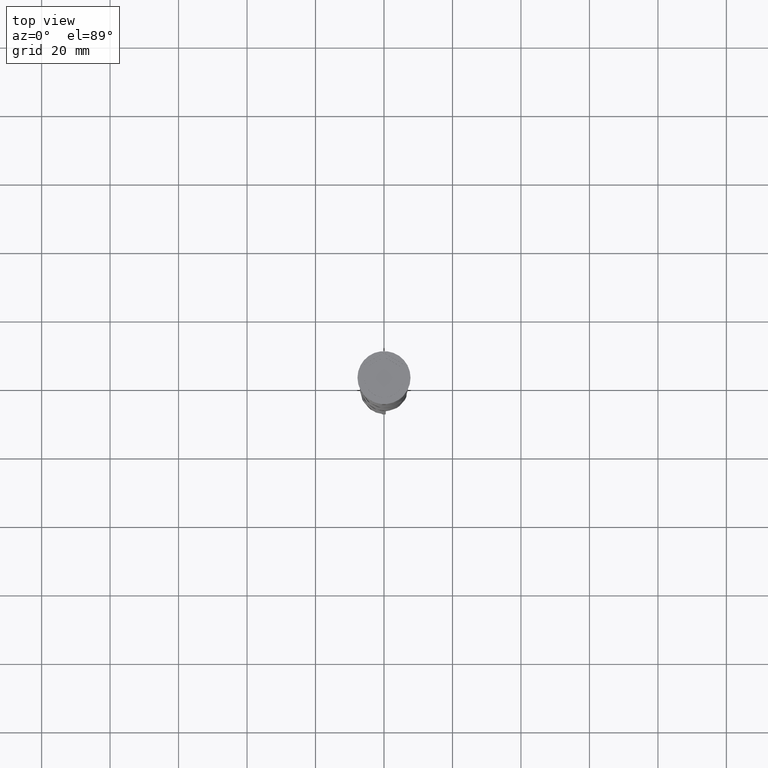
[diagram: clean part render]
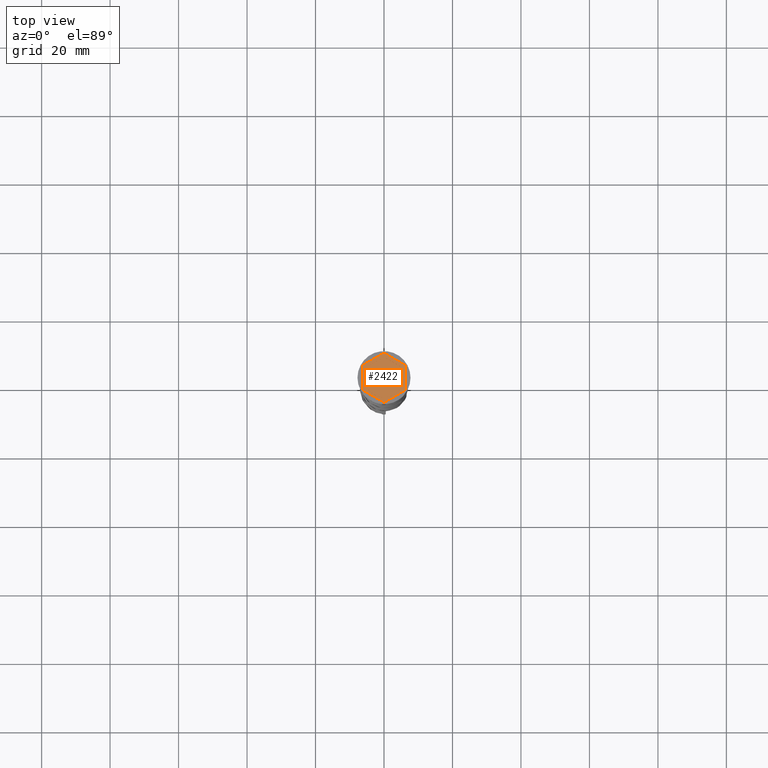
[diagram: same view with one face highlighted and labeled with its STEP entity id]
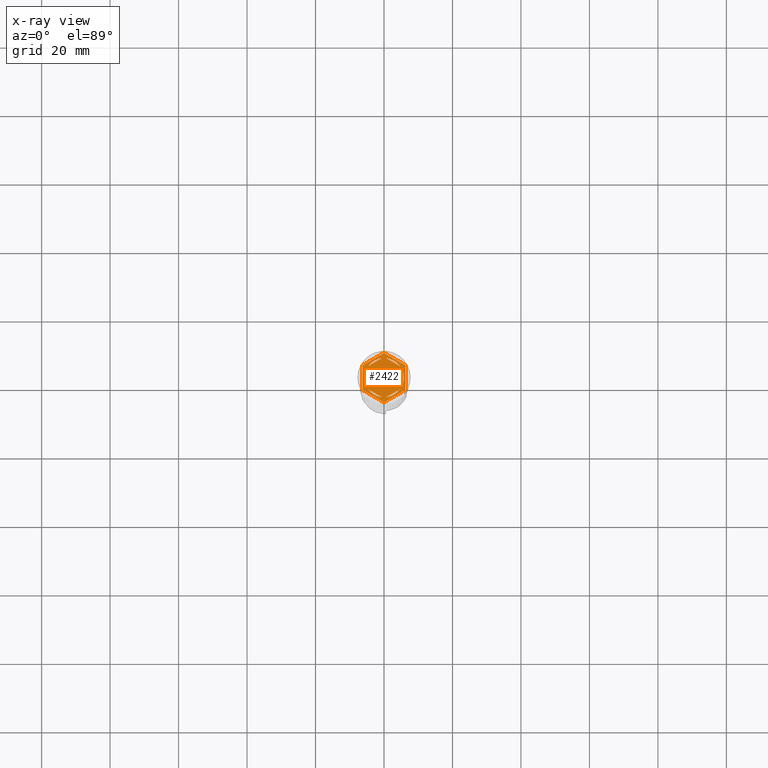
[diagram: x-ray of the same camera — body ghosted, the highlighted face saturated]
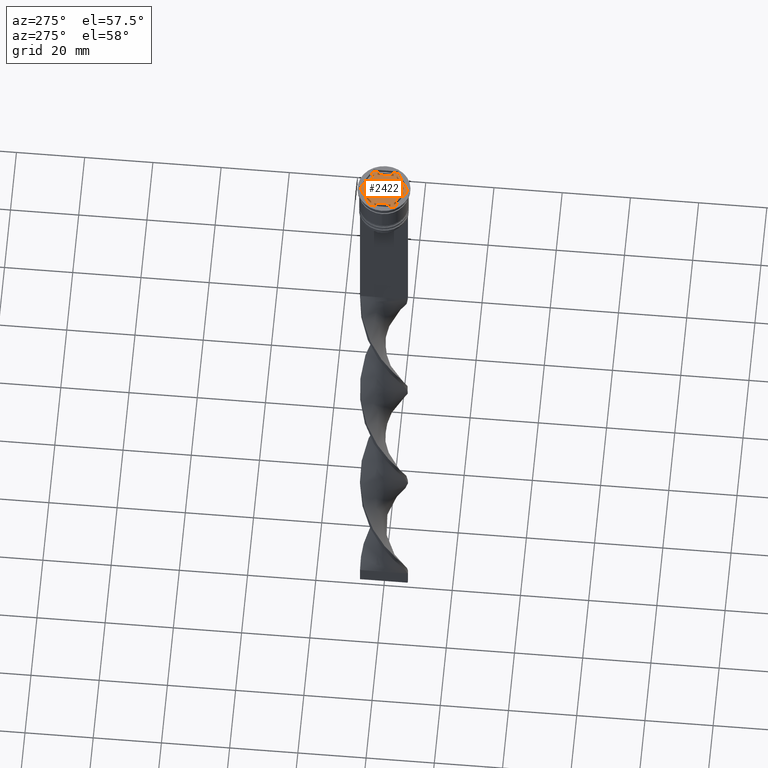
[diagram: same view with one face highlighted and labeled with its STEP entity id]
A machine part, top view. The second image highlights one B-rep face of the part: STEP entity #2422.
The next image is the same camera in x-ray: the body ghosted, the highlighted face saturated — about 0% of this face is hidden behind the body in this view.
A second angle (auxiliary view) of the same face is appended — the face is thin or edge-on in the first view.
In plain terms, the highlighted planar face has unit normal (0, 0, 1).
Its self-contained STEP definition (entity closure, byte-faithful):
#52 = CIRCLE ( 'NONE', #3800, 5.750000000000000000 ) ;
#124 = AXIS2_PLACEMENT_3D ( 'NONE', #602, #2908, #2354 ) ;
#127 = VERTEX_POINT ( 'NONE', #1676 ) ;
#177 = FACE_BOUND ( 'NONE', #430, .T. ) ;
#183 = DIRECTION ( 'NONE',  ( -0.8660254037844387076, -0.4999999999999997224, 0.000000000000000000 ) ) ;
#213 = ORIENTED_EDGE ( 'NONE', *, *, #1212, .T. ) ;
#234 = VERTEX_POINT ( 'NONE', #2501 ) ;
#242 = DIRECTION ( 'NONE',  ( 0.8660254037844387076, -0.4999999999999998335, 0.000000000000000000 ) ) ;
#260 = CARTESIAN_POINT ( 'NONE',  ( 4.656009601158990208, -3.374029429912445810, -1.000000000000000888 ) ) ;
#263 = CARTESIAN_POINT ( 'NONE',  ( 6.250000000000000000, 3.608439182435161374, -1.000000000000000000 ) ) ;
#277 = ORIENTED_EDGE ( 'NONE', *, *, #2572, .T. ) ;
#319 = CARTESIAN_POINT ( 'NONE',  ( 8.729740977282959667E-16, -7.216878364870321860, -1.000000000000000000 ) ) ;
#328 = LINE ( 'NONE', #2377, #1957 ) ;
#358 = VECTOR ( 'NONE', #2340, 1000.000000000000000 ) ;
#366 = LINE ( 'NONE', #3037, #924 ) ;
#385 = CARTESIAN_POINT ( 'NONE',  ( -0.5939903988410105695, 5.719237309824159787, -1.000000000000000888 ) ) ;
#402 = DIRECTION ( 'NONE',  ( -0.8660254037844384856, 0.5000000000000002220, 0.000000000000000000 ) ) ;
#411 = CARTESIAN_POINT ( 'NONE',  ( -6.249999999999999112, -3.608439182435161374, -1.000000000000000000 ) ) ;
#430 = EDGE_LOOP ( 'NONE', ( #3482, #2544, #1756 ) ) ;
#446 = LINE ( 'NONE', #2830, #2004 ) ;
#458 = FACE_BOUND ( 'NONE', #3722, .T. ) ;
#497 = FACE_BOUND ( 'NONE', #3206, .T. ) ;
#507 = CARTESIAN_POINT ( 'NONE',  ( -6.249999999999999112, 3.608439182435158710, -1.000000000000000000 ) ) ;
#525 = LINE ( 'NONE', #507, #1290 ) ;
#533 = DIRECTION ( 'NONE',  ( -0.8660254037844385966, -0.5000000000000001110, 0.000000000000000000 ) ) ;
#593 = CARTESIAN_POINT ( 'NONE',  ( 5.249999999999996447, -3.031088913245536975, -1.000000000000000888 ) ) ;
#597 = AXIS2_PLACEMENT_3D ( 'NONE', #1929, #1083, #777 ) ;
#602 = CARTESIAN_POINT ( 'NONE',  ( 0.000000000000000000, 0.000000000000000000, -1.000000000000000000 ) ) ;
#774 = EDGE_CURVE ( 'NONE', #1984, #1928, #3431, .T. ) ;
#777 = DIRECTION ( 'NONE',  ( 1.000000000000000000, 0.000000000000000000, 0.000000000000000000 ) ) ;
#790 = CARTESIAN_POINT ( 'NONE',  ( 5.249999999999997335, -2.345207879911720639, -1.000000000000000888 ) ) ;
#797 = DIRECTION ( 'NONE',  ( 1.000000000000000000, 0.000000000000000000, -0.000000000000000000 ) ) ;
#853 = CIRCLE ( 'NONE', #2184, 5.750000000000000000 ) ;
#856 = ORIENTED_EDGE ( 'NONE', *, *, #774, .T. ) ;
#887 = VERTEX_POINT ( 'NONE', #2406 ) ;
#888 = CARTESIAN_POINT ( 'NONE',  ( 0.000000000000000000, 7.216878364870320084, -1.000000000000000000 ) ) ;
#902 = ORIENTED_EDGE ( 'NONE', *, *, #2324, .F. ) ;
#916 = VECTOR ( 'NONE', #533, 1000.000000000000114 ) ;
#924 = VECTOR ( 'NONE', #402, 1000.000000000000114 ) ;
#935 = CARTESIAN_POINT ( 'NONE',  ( -5.249999999999999112, 2.345207879911715310, -1.000000000000000888 ) ) ;
#962 = EDGE_CURVE ( 'NONE', #3487, #887, #2357, .T. ) ;
#967 = VERTEX_POINT ( 'NONE', #2052 ) ;
#1030 = EDGE_CURVE ( 'NONE', #2031, #1984, #1870, .T. ) ;
#1037 = CARTESIAN_POINT ( 'NONE',  ( 8.673617379884035472E-16, 6.062177826491070398, -1.000000000000000888 ) ) ;
#1050 = LINE ( 'NONE', #2203, #2555 ) ;
#1073 = VERTEX_POINT ( 'NONE', #1429 ) ;
#1075 = LINE ( 'NONE', #1037, #1606 ) ;
#1083 = DIRECTION ( 'NONE',  ( 0.000000000000000000, 0.000000000000000000, 1.000000000000000000 ) ) ;
#1144 = EDGE_CURVE ( 'NONE', #1315, #2743, #446, .T. ) ;
#1150 = LINE ( 'NONE', #319, #358 ) ;
#1161 = ORIENTED_EDGE ( 'NONE', *, *, #1404, .F. ) ;
#1203 = EDGE_LOOP ( 'NONE', ( #1569, #1820 ) ) ;
#1210 = VECTOR ( 'NONE', #1795, 1000.000000000000000 ) ;
#1212 = EDGE_CURVE ( 'NONE', #1838, #967, #1050, .T. ) ;
#1252 = CARTESIAN_POINT ( 'NONE',  ( 0.000000000000000000, 0.000000000000000000, -1.000000000000000000 ) ) ;
#1290 = VECTOR ( 'NONE', #3584, 1000.000000000000000 ) ;
#1315 = VERTEX_POINT ( 'NONE', #260 ) ;
#1323 = EDGE_LOOP ( 'NONE', ( #2087, #2474 ) ) ;
#1380 = CARTESIAN_POINT ( 'NONE',  ( 5.249999999999997335, 3.031088913245537864, -1.000000000000000888 ) ) ;
#1404 = EDGE_CURVE ( 'NONE', #127, #2969, #1725, .T. ) ;
#1429 = CARTESIAN_POINT ( 'NONE',  ( -4.656009601158989319, 3.374029429912446698, -1.000000000000000888 ) ) ;
#1466 = VERTEX_POINT ( 'NONE', #3116 ) ;
#1471 = EDGE_LOOP ( 'NONE', ( #856, #277, #3050, #213, #2958, #3166 ) ) ;
#1472 = LINE ( 'NONE', #888, #916 ) ;
#1569 = ORIENTED_EDGE ( 'NONE', *, *, #2405, .F. ) ;
#1598 = AXIS2_PLACEMENT_3D ( 'NONE', #3118, #1981, #797 ) ;
#1606 = VECTOR ( 'NONE', #2169, 1000.000000000000000 ) ;
#1643 = FACE_BOUND ( 'NONE', #1203, .T. ) ;
#1676 = CARTESIAN_POINT ( 'NONE',  ( 5.249999999999997335, 2.345207879911718862, -1.000000000000000888 ) ) ;
#1693 = VERTEX_POINT ( 'NONE', #1790 ) ;
#1712 = ORIENTED_EDGE ( 'NONE', *, *, #3681, .F. ) ;
#1725 = LINE ( 'NONE', #593, #1210 ) ;
#1756 = ORIENTED_EDGE ( 'NONE', *, *, #2570, .F. ) ;
#1758 = DIRECTION ( 'NONE',  ( 0.000000000000000000, 0.000000000000000000, 1.000000000000000000 ) ) ;
#1790 = CARTESIAN_POINT ( 'NONE',  ( -0.5939903988410105695, -5.719237309824160675, -1.000000000000000888 ) ) ;
#1795 = DIRECTION ( 'NONE',  ( -1.430775808321103440E-16, -1.000000000000000000, 0.000000000000000000 ) ) ;
#1814 = CARTESIAN_POINT ( 'NONE',  ( 0.000000000000000000, 0.000000000000000000, -1.000000000000000000 ) ) ;
#1820 = ORIENTED_EDGE ( 'NONE', *, *, #3456, .F. ) ;
#1832 = AXIS2_PLACEMENT_3D ( 'NONE', #1814, #2636, #2919 ) ;
#1836 = CARTESIAN_POINT ( 'NONE',  ( 6.250000000000000000, 3.608439182435161374, -1.000000000000000000 ) ) ;
#1838 = VERTEX_POINT ( 'NONE', #411 ) ;
#1847 = CARTESIAN_POINT ( 'NONE',  ( 0.000000000000000000, 7.216878364870320084, -1.000000000000000000 ) ) ;
#1870 = LINE ( 'NONE', #2156, #2989 ) ;
#1928 = VERTEX_POINT ( 'NONE', #1847 ) ;
#1929 = CARTESIAN_POINT ( 'NONE',  ( 0.000000000000000000, 0.000000000000000000, -1.000000000000000000 ) ) ;
#1947 = FACE_BOUND ( 'NONE', #1323, .T. ) ;
#1957 = VECTOR ( 'NONE', #2318, 1000.000000000000000 ) ;
#1972 = EDGE_CURVE ( 'NONE', #887, #3487, #2204, .T. ) ;
#1981 = DIRECTION ( 'NONE',  ( 0.000000000000000000, 0.000000000000000000, 1.000000000000000000 ) ) ;
#1984 = VERTEX_POINT ( 'NONE', #263 ) ;
#1985 = CARTESIAN_POINT ( 'NONE',  ( 0.000000000000000000, 0.000000000000000000, -1.000000000000000000 ) ) ;
#2000 = DIRECTION ( 'NONE',  ( 0.000000000000000000, 0.000000000000000000, 1.000000000000000000 ) ) ;
#2004 = VECTOR ( 'NONE', #183, 1000.000000000000114 ) ;
#2006 = VECTOR ( 'NONE', #242, 1000.000000000000114 ) ;
#2015 = DIRECTION ( 'NONE',  ( 1.000000000000000000, 0.000000000000000000, 0.000000000000000000 ) ) ;
#2031 = VERTEX_POINT ( 'NONE', #3717 ) ;
#2036 = DIRECTION ( 'NONE',  ( 1.000000000000000000, 0.000000000000000000, 0.000000000000000000 ) ) ;
#2052 = CARTESIAN_POINT ( 'NONE',  ( 8.729740977282959667E-16, -7.216878364870321860, -1.000000000000000000 ) ) ;
#2067 = ORIENTED_EDGE ( 'NONE', *, *, #3252, .F. ) ;
#2087 = ORIENTED_EDGE ( 'NONE', *, *, #962, .F. ) ;
#2143 = EDGE_CURVE ( 'NONE', #2312, #3801, #853, .T. ) ;
#2156 = CARTESIAN_POINT ( 'NONE',  ( 6.249999999999998224, -3.608439182435161374, -1.000000000000000000 ) ) ;
#2169 = DIRECTION ( 'NONE',  ( 0.8660254037844387076, 0.4999999999999999445, -0.000000000000000000 ) ) ;
#2184 = AXIS2_PLACEMENT_3D ( 'NONE', #1985, #2000, #3177 ) ;
#2187 = EDGE_CURVE ( 'NONE', #3069, #2312, #328, .T. ) ;
#2203 = CARTESIAN_POINT ( 'NONE',  ( -6.249999999999999112, -3.608439182435161374, -1.000000000000000000 ) ) ;
#2204 = LINE ( 'NONE', #1380, #2006 ) ;
#2235 = FACE_OUTER_BOUND ( 'NONE', #1471, .T. ) ;
#2308 = VECTOR ( 'NONE', #3597, 1000.000000000000000 ) ;
#2312 = VERTEX_POINT ( 'NONE', #935 ) ;
#2318 = DIRECTION ( 'NONE',  ( 0.000000000000000000, 1.000000000000000000, 0.000000000000000000 ) ) ;
#2324 = EDGE_CURVE ( 'NONE', #2642, #1073, #3611, .T. ) ;
#2340 = DIRECTION ( 'NONE',  ( 0.8660254037844385966, 0.5000000000000001110, 0.000000000000000000 ) ) ;
#2354 = DIRECTION ( 'NONE',  ( 1.000000000000000000, 0.000000000000000000, 0.000000000000000000 ) ) ;
#2357 = CIRCLE ( 'NONE', #1832, 5.750000000000000000 ) ;
#2377 = CARTESIAN_POINT ( 'NONE',  ( -5.249999999999999112, 3.031088913245535199, -1.000000000000000888 ) ) ;
#2405 = EDGE_CURVE ( 'NONE', #234, #1693, #3550, .T. ) ;
#2406 = CARTESIAN_POINT ( 'NONE',  ( 0.5939903988410126789, 5.719237309824160675, -1.000000000000000888 ) ) ;
#2414 = DIRECTION ( 'NONE',  ( 0.000000000000000000, 0.000000000000000000, 1.000000000000000000 ) ) ;
#2422 = ADVANCED_FACE ( 'NONE', ( #1947, #3101, #458, #1643, #177, #497, #2235 ), #2805, .T. ) ;
#2474 = ORIENTED_EDGE ( 'NONE', *, *, #1972, .F. ) ;
#2501 = CARTESIAN_POINT ( 'NONE',  ( -4.656009601158991096, -3.374029429912444034, -1.000000000000000888 ) ) ;
#2544 = ORIENTED_EDGE ( 'NONE', *, *, #2187, .F. ) ;
#2555 = VECTOR ( 'NONE', #3389, 1000.000000000000227 ) ;
#2570 = EDGE_CURVE ( 'NONE', #3801, #3069, #3427, .T. ) ;
#2572 = EDGE_CURVE ( 'NONE', #1928, #1466, #1472, .T. ) ;
#2636 = DIRECTION ( 'NONE',  ( 0.000000000000000000, 0.000000000000000000, 1.000000000000000000 ) ) ;
#2642 = VERTEX_POINT ( 'NONE', #385 ) ;
#2736 = EDGE_CURVE ( 'NONE', #2969, #127, #52, .T. ) ;
#2743 = VERTEX_POINT ( 'NONE', #3634 ) ;
#2791 = ORIENTED_EDGE ( 'NONE', *, *, #1144, .F. ) ;
#2805 = PLANE ( 'NONE',  #1598 ) ;
#2830 = CARTESIAN_POINT ( 'NONE',  ( -1.734723475976807094E-15, -6.062177826491069510, -1.000000000000000888 ) ) ;
#2908 = DIRECTION ( 'NONE',  ( 0.000000000000000000, 0.000000000000000000, 1.000000000000000000 ) ) ;
#2919 = DIRECTION ( 'NONE',  ( 1.000000000000000000, 0.000000000000000000, 0.000000000000000000 ) ) ;
#2949 = ORIENTED_EDGE ( 'NONE', *, *, #2736, .F. ) ;
#2958 = ORIENTED_EDGE ( 'NONE', *, *, #3074, .T. ) ;
#2969 = VERTEX_POINT ( 'NONE', #790 ) ;
#2989 = VECTOR ( 'NONE', #3034, 1000.000000000000000 ) ;
#2996 = AXIS2_PLACEMENT_3D ( 'NONE', #3228, #1758, #2036 ) ;
#3034 = DIRECTION ( 'NONE',  ( 2.403703357979454647E-16, 1.000000000000000000, 0.000000000000000000 ) ) ;
#3037 = CARTESIAN_POINT ( 'NONE',  ( -5.249999999999999112, -3.031088913245534311, -1.000000000000000888 ) ) ;
#3050 = ORIENTED_EDGE ( 'NONE', *, *, #3348, .T. ) ;
#3069 = VERTEX_POINT ( 'NONE', #3803 ) ;
#3074 = EDGE_CURVE ( 'NONE', #967, #2031, #1150, .T. ) ;
#3101 = FACE_BOUND ( 'NONE', #3678, .T. ) ;
#3116 = CARTESIAN_POINT ( 'NONE',  ( -6.249999999999999112, 3.608439182435158710, -1.000000000000000000 ) ) ;
#3118 = CARTESIAN_POINT ( 'NONE',  ( 0.000000000000000000, 0.000000000000000000, -1.000000000000000000 ) ) ;
#3166 = ORIENTED_EDGE ( 'NONE', *, *, #1030, .T. ) ;
#3171 = DIRECTION ( 'NONE',  ( 0.000000000000000000, 0.000000000000000000, 1.000000000000000000 ) ) ;
#3177 = DIRECTION ( 'NONE',  ( 1.000000000000000000, 0.000000000000000000, 0.000000000000000000 ) ) ;
#3206 = EDGE_LOOP ( 'NONE', ( #902, #2067 ) ) ;
#3228 = CARTESIAN_POINT ( 'NONE',  ( 0.000000000000000000, 0.000000000000000000, -1.000000000000000000 ) ) ;
#3252 = EDGE_CURVE ( 'NONE', #1073, #2642, #1075, .T. ) ;
#3348 = EDGE_CURVE ( 'NONE', #1466, #1838, #525, .T. ) ;
#3360 = CARTESIAN_POINT ( 'NONE',  ( 4.656009601158988431, 3.374029429912448919, -1.000000000000000888 ) ) ;
#3376 = CIRCLE ( 'NONE', #124, 5.750000000000000000 ) ;
#3389 = DIRECTION ( 'NONE',  ( 0.8660254037844385966, -0.4999999999999998890, 0.000000000000000000 ) ) ;
#3427 = CIRCLE ( 'NONE', #3614, 5.750000000000000000 ) ;
#3431 = LINE ( 'NONE', #1836, #2308 ) ;
#3456 = EDGE_CURVE ( 'NONE', #1693, #234, #366, .T. ) ;
#3482 = ORIENTED_EDGE ( 'NONE', *, *, #2143, .F. ) ;
#3487 = VERTEX_POINT ( 'NONE', #3360 ) ;
#3550 = CIRCLE ( 'NONE', #597, 5.750000000000000000 ) ;
#3560 = CARTESIAN_POINT ( 'NONE',  ( 0.000000000000000000, 0.000000000000000000, -1.000000000000000000 ) ) ;
#3584 = DIRECTION ( 'NONE',  ( 0.000000000000000000, -1.000000000000000000, 0.000000000000000000 ) ) ;
#3595 = DIRECTION ( 'NONE',  ( 1.000000000000000000, 0.000000000000000000, 0.000000000000000000 ) ) ;
#3597 = DIRECTION ( 'NONE',  ( -0.8660254037844388186, 0.4999999999999997224, 0.000000000000000000 ) ) ;
#3611 = CIRCLE ( 'NONE', #2996, 5.750000000000000000 ) ;
#3614 = AXIS2_PLACEMENT_3D ( 'NONE', #3560, #3171, #2015 ) ;
#3634 = CARTESIAN_POINT ( 'NONE',  ( 0.5939903988410074609, -5.719237309824160675, -1.000000000000000888 ) ) ;
#3678 = EDGE_LOOP ( 'NONE', ( #2949, #1161 ) ) ;
#3681 = EDGE_CURVE ( 'NONE', #2743, #1315, #3376, .T. ) ;
#3683 = CARTESIAN_POINT ( 'NONE',  ( -5.750000000000000000, 0.000000000000000000, -1.000000000000000000 ) ) ;
#3717 = CARTESIAN_POINT ( 'NONE',  ( 6.249999999999998224, -3.608439182435161374, -1.000000000000000000 ) ) ;
#3722 = EDGE_LOOP ( 'NONE', ( #1712, #2791 ) ) ;
#3800 = AXIS2_PLACEMENT_3D ( 'NONE', #1252, #2414, #3595 ) ;
#3801 = VERTEX_POINT ( 'NONE', #3683 ) ;
#3803 = CARTESIAN_POINT ( 'NONE',  ( -5.249999999999999112, -2.345207879911715310, -1.000000000000000888 ) ) ;